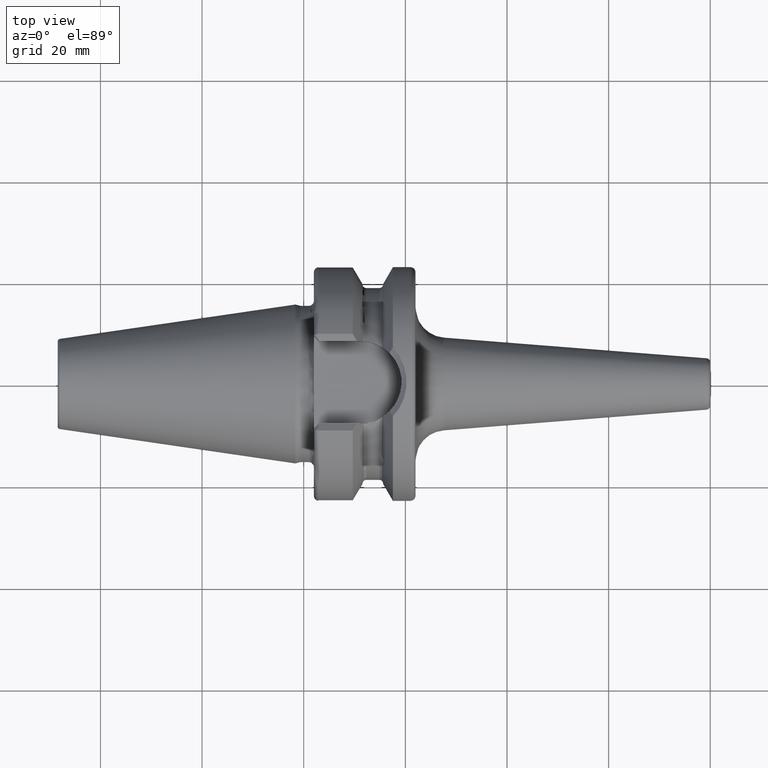
[diagram: clean part render]
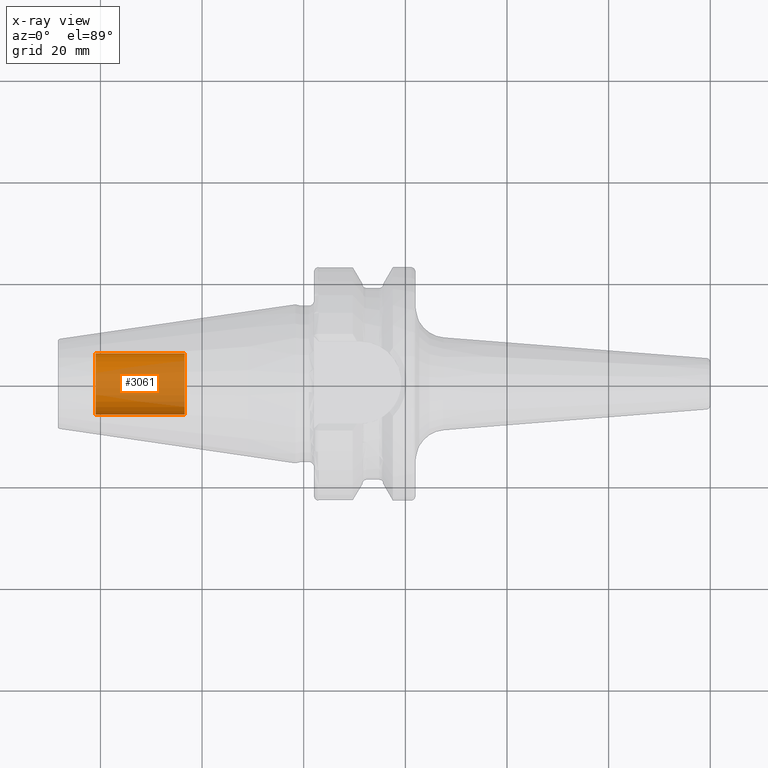
[diagram: x-ray — body ghosted, one internal face saturated and labeled with its STEP entity id]
A machine part, top view, then the same camera in x-ray: the body is ghosted and one INTERNAL B-rep face — a face not visible from any outside direction — is saturated and labeled: STEP entity #3061.
In plain terms, the highlighted cylindrical surface (edge-blend (fillet) strip) has radius 6.0027 mm, axis along (1, 0, 0).
Its self-contained STEP definition (entity closure, byte-faithful):
#2996=CARTESIAN_POINT('',(-4.095E1,0.E0,0.E0));
#2997=DIRECTION('',(-1.E0,0.E0,0.E0));
#2998=DIRECTION('',(0.E0,1.E0,0.E0));
#2999=AXIS2_PLACEMENT_3D('',#2996,#2997,#2998);
#3001=DIRECTION('',(1.E0,0.E0,0.E0));
#3002=VECTOR('',#3001,1.755E1);
#3003=CARTESIAN_POINT('',(-4.095E1,-6.00275E0,0.E0));
#3004=LINE('',#3003,#3002);
#3010=DIRECTION('',(1.E0,0.E0,0.E0));
#3011=VECTOR('',#3010,1.755E1);
#3012=CARTESIAN_POINT('',(-4.095E1,6.00275E0,0.E0));
#3013=LINE('',#3012,#3011);
#3019=CARTESIAN_POINT('',(-2.34E1,0.E0,0.E0));
#3020=DIRECTION('',(1.E0,0.E0,0.E0));
#3021=DIRECTION('',(0.E0,-1.E0,0.E0));
#3022=AXIS2_PLACEMENT_3D('',#3019,#3020,#3021);
#3034=CARTESIAN_POINT('',(-4.095E1,6.00275E0,0.E0));
#3035=CARTESIAN_POINT('',(-4.095E1,-6.00275E0,0.E0));
#3036=VERTEX_POINT('',#3034);
#3037=VERTEX_POINT('',#3035);
#3038=CARTESIAN_POINT('',(-2.34E1,6.00275E0,0.E0));
#3039=CARTESIAN_POINT('',(-2.34E1,-6.00275E0,0.E0));
#3040=VERTEX_POINT('',#3038);
#3041=VERTEX_POINT('',#3039);
#3046=CARTESIAN_POINT('',(-4.095E1,0.E0,0.E0));
#3047=DIRECTION('',(1.E0,0.E0,0.E0));
#3048=DIRECTION('',(0.E0,1.E0,0.E0));
#3049=AXIS2_PLACEMENT_3D('',#3046,#3047,#3048);
#3050=CYLINDRICAL_SURFACE('',#3049,6.00275E0);
#3052=ORIENTED_EDGE('',*,*,#3051,.T.);
#3054=ORIENTED_EDGE('',*,*,#3053,.T.);
#3056=ORIENTED_EDGE('',*,*,#3055,.T.);
#3058=ORIENTED_EDGE('',*,*,#3057,.F.);
#3059=EDGE_LOOP('',(#3052,#3054,#3056,#3058));
#3060=FACE_OUTER_BOUND('',#3059,.F.);
#3061=ADVANCED_FACE('',(#3060),#3050,.T.);
#3000=CIRCLE('',#2999,6.00275E0);
#3023=CIRCLE('',#3022,6.00275E0);
#3051=EDGE_CURVE('',#3036,#3037,#3000,.T.);
#3053=EDGE_CURVE('',#3037,#3041,#3004,.T.);
#3055=EDGE_CURVE('',#3041,#3040,#3023,.T.);
#3057=EDGE_CURVE('',#3036,#3040,#3013,.T.);